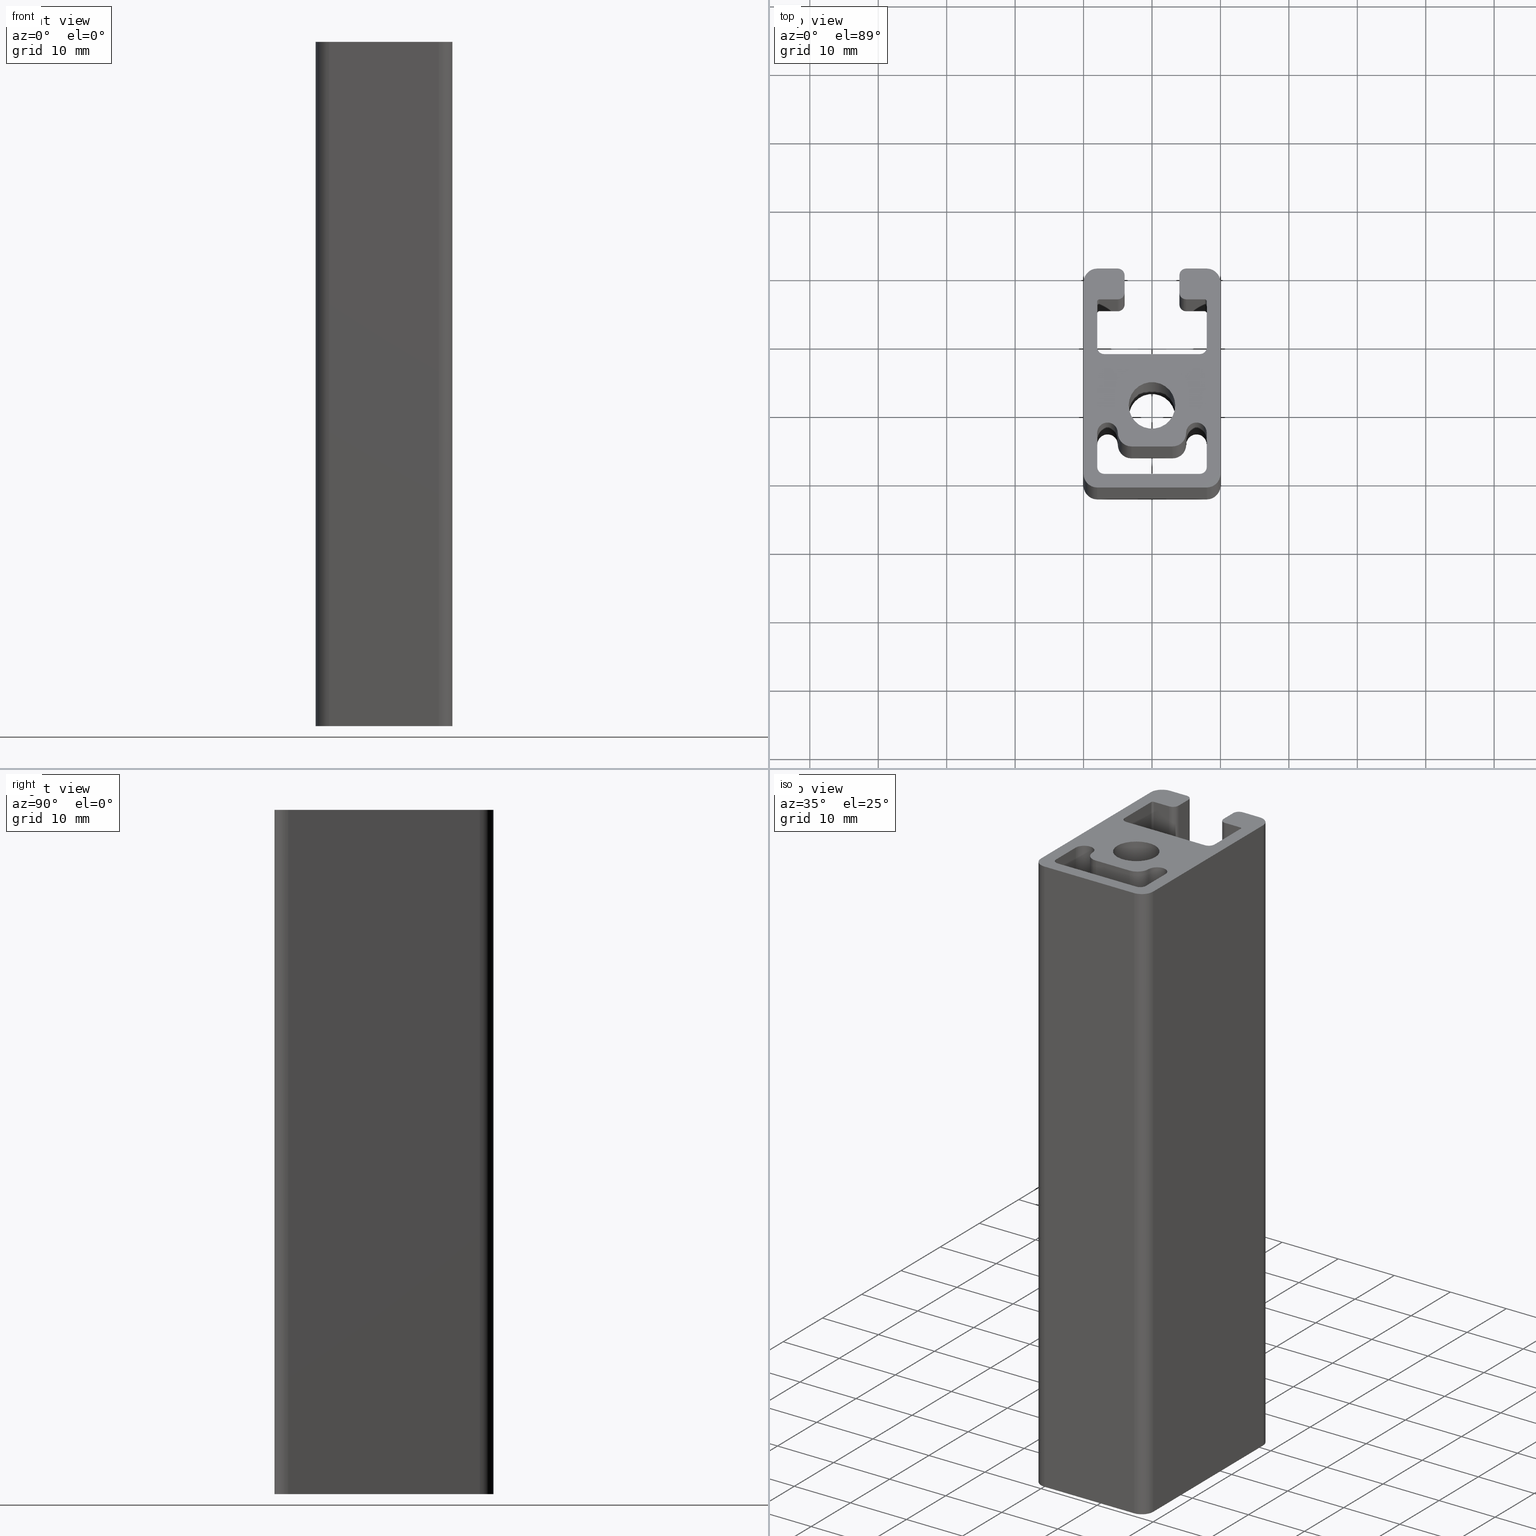
[diagram: canonical four-view strip — front | top / right | iso, engineering-drawing reading convention]
A machine part, canonical four-view strip (front | top / right | iso — engineering-drawing reading convention). The complete STEP part file that produces these views, byte-faithful:
ISO-10303-21;
HEADER;
/* Generated by software containing ST-Developer
 * from STEP Tools, Inc. (www.steptools.com) 
 */

FILE_DESCRIPTION(
/* description */ (''),
/* implementation_level */ '2;1');

FILE_NAME(
/* name */ 
'Q:\\Catalogo\\1_Profili Dierre\\Per Download Web\\Serie 40\\BPRDD0000
031.stp',
/* time_stamp */ '2017-07-12T11:02:10+02:00',
/* author */ ('fzagni'),
/* organization */ (''),
/* preprocessor_version */ 'ST-DEVELOPER v16.1',
/* originating_system */ 'Autodesk Inventor 2016',
/* authorisation */ '');

FILE_SCHEMA (('AUTOMOTIVE_DESIGN { 1 0 10303 214 3 1 1 }'));
ENDSEC;

DATA;
#10=MECHANICAL_DESIGN_GEOMETRIC_PRESENTATION_REPRESENTATION('',(#13),#1235);
#11=SHAPE_REPRESENTATION_RELATIONSHIP('SRR','None',#1244,#12);
#12=ADVANCED_BREP_SHAPE_REPRESENTATION('',(#14),#1234);
#13=STYLED_ITEM('',(#1253),#14);
#14=MANIFOLD_SOLID_BREP('Solido1',#725);
#15=LINE('',#1029,#81);
#16=LINE('',#1031,#82);
#17=LINE('',#1033,#83);
#18=LINE('',#1034,#84);
#19=LINE('',#1040,#85);
#20=LINE('',#1043,#86);
#21=LINE('',#1045,#87);
#22=LINE('',#1046,#88);
#23=LINE('',#1052,#89);
#24=LINE('',#1058,#90);
#25=LINE('',#1061,#91);
#26=LINE('',#1063,#92);
#27=LINE('',#1064,#93);
#28=LINE('',#1070,#94);
#29=LINE('',#1076,#95);
#30=LINE('',#1079,#96);
#31=LINE('',#1081,#97);
#32=LINE('',#1082,#98);
#33=LINE('',#1091,#99);
#34=LINE('',#1094,#100);
#35=LINE('',#1097,#101);
#36=LINE('',#1099,#102);
#37=LINE('',#1100,#103);
#38=LINE('',#1105,#104);
#39=LINE('',#1109,#105);
#40=LINE('',#1111,#106);
#41=LINE('',#1112,#107);
#42=LINE('',#1117,#108);
#43=LINE('',#1121,#109);
#44=LINE('',#1123,#110);
#45=LINE('',#1124,#111);
#46=LINE('',#1129,#112);
#47=LINE('',#1133,#113);
#48=LINE('',#1135,#114);
#49=LINE('',#1136,#115);
#50=LINE('',#1141,#116);
#51=LINE('',#1145,#117);
#52=LINE('',#1147,#118);
#53=LINE('',#1148,#119);
#54=LINE('',#1153,#120);
#55=LINE('',#1157,#121);
#56=LINE('',#1159,#122);
#57=LINE('',#1160,#123);
#58=LINE('',#1165,#124);
#59=LINE('',#1169,#125);
#60=LINE('',#1171,#126);
#61=LINE('',#1172,#127);
#62=LINE('',#1177,#128);
#63=LINE('',#1181,#129);
#64=LINE('',#1183,#130);
#65=LINE('',#1184,#131);
#66=LINE('',#1187,#132);
#67=LINE('',#1189,#133);
#68=LINE('',#1190,#134);
#69=LINE('',#1196,#135);
#70=LINE('',#1199,#136);
#71=LINE('',#1202,#137);
#72=LINE('',#1204,#138);
#73=LINE('',#1205,#139);
#74=LINE('',#1213,#140);
#75=LINE('',#1217,#141);
#76=LINE('',#1219,#142);
#77=LINE('',#1220,#143);
#78=LINE('',#1225,#144);
#79=LINE('',#1228,#145);
#80=LINE('',#1229,#146);
#81=VECTOR('',#812,14.0000011505603);
#82=VECTOR('',#813,100.);
#83=VECTOR('',#814,14.0000011505603);
#84=VECTOR('',#815,100.);
#85=VECTOR('',#822,100.);
#86=VECTOR('',#825,5.00000057528016);
#87=VECTOR('',#826,5.00000057528016);
#88=VECTOR('',#827,100.);
#89=VECTOR('',#834,100.);
#90=VECTOR('',#841,100.);
#91=VECTOR('',#844,5.99999999999999);
#92=VECTOR('',#845,5.99999999999999);
#93=VECTOR('',#846,100.);
#94=VECTOR('',#853,100.);
#95=VECTOR('',#860,100.);
#96=VECTOR('',#863,5.00000057528015);
#97=VECTOR('',#864,5.00000057528015);
#98=VECTOR('',#865,100.);
#99=VECTOR('',#876,100.);
#100=VECTOR('',#879,100.);
#101=VECTOR('',#882,2.50000399190596);
#102=VECTOR('',#883,100.);
#103=VECTOR('',#884,2.50000399190596);
#104=VECTOR('',#889,100.);
#105=VECTOR('',#894,2.70000144973507);
#106=VECTOR('',#895,100.);
#107=VECTOR('',#896,2.70000144973507);
#108=VECTOR('',#901,100.);
#109=VECTOR('',#906,6.70000144973492);
#110=VECTOR('',#907,100.);
#111=VECTOR('',#908,6.70000144973492);
#112=VECTOR('',#913,100.);
#113=VECTOR('',#918,14.0000039919057);
#114=VECTOR('',#919,100.);
#115=VECTOR('',#920,14.0000039919057);
#116=VECTOR('',#925,100.);
#117=VECTOR('',#930,6.70000144973492);
#118=VECTOR('',#931,100.);
#119=VECTOR('',#932,6.70000144973492);
#120=VECTOR('',#937,100.);
#121=VECTOR('',#942,2.70000144973507);
#122=VECTOR('',#943,100.);
#123=VECTOR('',#944,2.70000144973507);
#124=VECTOR('',#949,100.);
#125=VECTOR('',#954,2.50000399190597);
#126=VECTOR('',#955,100.);
#127=VECTOR('',#956,2.50000399190597);
#128=VECTOR('',#961,100.);
#129=VECTOR('',#966,3.00000199595299);
#130=VECTOR('',#967,100.);
#131=VECTOR('',#968,3.00000199595299);
#132=VECTOR('',#971,3.00000199595296);
#133=VECTOR('',#972,100.);
#134=VECTOR('',#973,3.00000199595296);
#135=VECTOR('',#978,100.);
#136=VECTOR('',#981,100.);
#137=VECTOR('',#984,28.);
#138=VECTOR('',#985,100.);
#139=VECTOR('',#986,28.);
#140=VECTOR('',#997,100.);
#141=VECTOR('',#1002,28.);
#142=VECTOR('',#1003,100.);
#143=VECTOR('',#1004,28.);
#144=VECTOR('',#1009,100.);
#145=VECTOR('',#1014,16.);
#146=VECTOR('',#1015,16.);
#147=PLANE('',#730);
#148=PLANE('',#734);
#149=PLANE('',#741);
#150=PLANE('',#748);
#151=PLANE('',#755);
#152=PLANE('',#759);
#153=PLANE('',#763);
#154=PLANE('',#767);
#155=PLANE('',#771);
#156=PLANE('',#775);
#157=PLANE('',#779);
#158=PLANE('',#783);
#159=PLANE('',#784);
#160=PLANE('',#788);
#161=PLANE('',#795);
#162=PLANE('',#799);
#163=PLANE('',#800);
#164=PLANE('',#801);
#165=FACE_BOUND('',#208,.T.);
#166=FACE_BOUND('',#244,.T.);
#167=FACE_BOUND('',#245,.T.);
#168=FACE_BOUND('',#247,.T.);
#169=FACE_BOUND('',#248,.T.);
#170=FACE_OUTER_BOUND('',#207,.T.);
#171=FACE_OUTER_BOUND('',#209,.T.);
#172=FACE_OUTER_BOUND('',#210,.T.);
#173=FACE_OUTER_BOUND('',#211,.T.);
#174=FACE_OUTER_BOUND('',#212,.T.);
#175=FACE_OUTER_BOUND('',#213,.T.);
#176=FACE_OUTER_BOUND('',#214,.T.);
#177=FACE_OUTER_BOUND('',#215,.T.);
#178=FACE_OUTER_BOUND('',#216,.T.);
#179=FACE_OUTER_BOUND('',#217,.T.);
#180=FACE_OUTER_BOUND('',#218,.T.);
#181=FACE_OUTER_BOUND('',#219,.T.);
#182=FACE_OUTER_BOUND('',#220,.T.);
#183=FACE_OUTER_BOUND('',#221,.T.);
#184=FACE_OUTER_BOUND('',#222,.T.);
#185=FACE_OUTER_BOUND('',#223,.T.);
#186=FACE_OUTER_BOUND('',#224,.T.);
#187=FACE_OUTER_BOUND('',#225,.T.);
#188=FACE_OUTER_BOUND('',#226,.T.);
#189=FACE_OUTER_BOUND('',#227,.T.);
#190=FACE_OUTER_BOUND('',#228,.T.);
#191=FACE_OUTER_BOUND('',#229,.T.);
#192=FACE_OUTER_BOUND('',#230,.T.);
#193=FACE_OUTER_BOUND('',#231,.T.);
#194=FACE_OUTER_BOUND('',#232,.T.);
#195=FACE_OUTER_BOUND('',#233,.T.);
#196=FACE_OUTER_BOUND('',#234,.T.);
#197=FACE_OUTER_BOUND('',#235,.T.);
#198=FACE_OUTER_BOUND('',#236,.T.);
#199=FACE_OUTER_BOUND('',#237,.T.);
#200=FACE_OUTER_BOUND('',#238,.T.);
#201=FACE_OUTER_BOUND('',#239,.T.);
#202=FACE_OUTER_BOUND('',#240,.T.);
#203=FACE_OUTER_BOUND('',#241,.T.);
#204=FACE_OUTER_BOUND('',#242,.T.);
#205=FACE_OUTER_BOUND('',#243,.T.);
#206=FACE_OUTER_BOUND('',#246,.T.);
#207=EDGE_LOOP('',(#461));
#208=EDGE_LOOP('',(#462));
#209=EDGE_LOOP('',(#463,#464,#465,#466));
#210=EDGE_LOOP('',(#467,#468,#469,#470));
#211=EDGE_LOOP('',(#471,#472,#473,#474));
#212=EDGE_LOOP('',(#475,#476,#477,#478));
#213=EDGE_LOOP('',(#479,#480,#481,#482));
#214=EDGE_LOOP('',(#483,#484,#485,#486));
#215=EDGE_LOOP('',(#487,#488,#489,#490));
#216=EDGE_LOOP('',(#491,#492,#493,#494));
#217=EDGE_LOOP('',(#495,#496,#497,#498));
#218=EDGE_LOOP('',(#499,#500,#501,#502));
#219=EDGE_LOOP('',(#503,#504,#505,#506));
#220=EDGE_LOOP('',(#507,#508,#509,#510));
#221=EDGE_LOOP('',(#511,#512,#513,#514));
#222=EDGE_LOOP('',(#515,#516,#517,#518));
#223=EDGE_LOOP('',(#519,#520,#521,#522));
#224=EDGE_LOOP('',(#523,#524,#525,#526));
#225=EDGE_LOOP('',(#527,#528,#529,#530));
#226=EDGE_LOOP('',(#531,#532,#533,#534));
#227=EDGE_LOOP('',(#535,#536,#537,#538));
#228=EDGE_LOOP('',(#539,#540,#541,#542));
#229=EDGE_LOOP('',(#543,#544,#545,#546));
#230=EDGE_LOOP('',(#547,#548,#549,#550));
#231=EDGE_LOOP('',(#551,#552,#553,#554));
#232=EDGE_LOOP('',(#555,#556,#557,#558));
#233=EDGE_LOOP('',(#559,#560,#561,#562));
#234=EDGE_LOOP('',(#563,#564,#565,#566));
#235=EDGE_LOOP('',(#567,#568,#569,#570));
#236=EDGE_LOOP('',(#571,#572,#573,#574));
#237=EDGE_LOOP('',(#575,#576,#577,#578));
#238=EDGE_LOOP('',(#579,#580,#581,#582));
#239=EDGE_LOOP('',(#583,#584,#585,#586));
#240=EDGE_LOOP('',(#587,#588,#589,#590));
#241=EDGE_LOOP('',(#591,#592,#593,#594));
#242=EDGE_LOOP('',(#595,#596,#597,#598));
#243=EDGE_LOOP('',(#599,#600,#601,#602,#603,#604,#605,#606,#607,#608,#609,
#610,#611,#612,#613,#614,#615,#616,#617,#618,#619,#620,#621,#622));
#244=EDGE_LOOP('',(#623));
#245=EDGE_LOOP('',(#624,#625,#626,#627,#628,#629,#630,#631,#632,#633));
#246=EDGE_LOOP('',(#634,#635,#636,#637,#638,#639,#640,#641,#642,#643,#644,
#645,#646,#647,#648,#649,#650,#651,#652,#653,#654,#655,#656,#657));
#247=EDGE_LOOP('',(#658));
#248=EDGE_LOOP('',(#659,#660,#661,#662,#663,#664,#665,#666,#667,#668));
#249=CIRCLE('',#728,3.4);
#250=CIRCLE('',#729,3.4);
#251=CIRCLE('',#732,0.999999424719846);
#252=CIRCLE('',#733,0.999999424719846);
#253=CIRCLE('',#736,1.5);
#254=CIRCLE('',#737,1.5);
#255=CIRCLE('',#739,2.);
#256=CIRCLE('',#740,2.);
#257=CIRCLE('',#743,2.);
#258=CIRCLE('',#744,2.);
#259=CIRCLE('',#746,1.5);
#260=CIRCLE('',#747,1.5);
#261=CIRCLE('',#750,0.999999424719839);
#262=CIRCLE('',#751,0.999999424719839);
#263=CIRCLE('',#753,0.999998004047022);
#264=CIRCLE('',#754,0.999998004047022);
#265=CIRCLE('',#757,0.999998004047022);
#266=CIRCLE('',#758,0.999998004047022);
#267=CIRCLE('',#761,0.300000546217913);
#268=CIRCLE('',#762,0.300000546217913);
#269=CIRCLE('',#765,0.999998004047152);
#270=CIRCLE('',#766,0.999998004047152);
#271=CIRCLE('',#769,0.99999800404715);
#272=CIRCLE('',#770,0.99999800404715);
#273=CIRCLE('',#773,0.300000546217916);
#274=CIRCLE('',#774,0.300000546217916);
#275=CIRCLE('',#777,0.999998004047022);
#276=CIRCLE('',#778,0.999998004047022);
#277=CIRCLE('',#781,0.999998004047022);
#278=CIRCLE('',#782,0.999998004047022);
#279=CIRCLE('',#786,2.);
#280=CIRCLE('',#787,2.);
#281=CIRCLE('',#790,1.99999999999999);
#282=CIRCLE('',#791,1.99999999999999);
#283=CIRCLE('',#793,2.);
#284=CIRCLE('',#794,2.);
#285=CIRCLE('',#797,2.);
#286=CIRCLE('',#798,2.);
#287=VERTEX_POINT('',#1022);
#288=VERTEX_POINT('',#1024);
#289=VERTEX_POINT('',#1027);
#290=VERTEX_POINT('',#1028);
#291=VERTEX_POINT('',#1030);
#292=VERTEX_POINT('',#1032);
#293=VERTEX_POINT('',#1036);
#294=VERTEX_POINT('',#1038);
#295=VERTEX_POINT('',#1042);
#296=VERTEX_POINT('',#1044);
#297=VERTEX_POINT('',#1048);
#298=VERTEX_POINT('',#1050);
#299=VERTEX_POINT('',#1054);
#300=VERTEX_POINT('',#1056);
#301=VERTEX_POINT('',#1060);
#302=VERTEX_POINT('',#1062);
#303=VERTEX_POINT('',#1066);
#304=VERTEX_POINT('',#1068);
#305=VERTEX_POINT('',#1072);
#306=VERTEX_POINT('',#1074);
#307=VERTEX_POINT('',#1078);
#308=VERTEX_POINT('',#1080);
#309=VERTEX_POINT('',#1087);
#310=VERTEX_POINT('',#1088);
#311=VERTEX_POINT('',#1090);
#312=VERTEX_POINT('',#1092);
#313=VERTEX_POINT('',#1096);
#314=VERTEX_POINT('',#1098);
#315=VERTEX_POINT('',#1102);
#316=VERTEX_POINT('',#1104);
#317=VERTEX_POINT('',#1108);
#318=VERTEX_POINT('',#1110);
#319=VERTEX_POINT('',#1114);
#320=VERTEX_POINT('',#1116);
#321=VERTEX_POINT('',#1120);
#322=VERTEX_POINT('',#1122);
#323=VERTEX_POINT('',#1126);
#324=VERTEX_POINT('',#1128);
#325=VERTEX_POINT('',#1132);
#326=VERTEX_POINT('',#1134);
#327=VERTEX_POINT('',#1138);
#328=VERTEX_POINT('',#1140);
#329=VERTEX_POINT('',#1144);
#330=VERTEX_POINT('',#1146);
#331=VERTEX_POINT('',#1150);
#332=VERTEX_POINT('',#1152);
#333=VERTEX_POINT('',#1156);
#334=VERTEX_POINT('',#1158);
#335=VERTEX_POINT('',#1162);
#336=VERTEX_POINT('',#1164);
#337=VERTEX_POINT('',#1168);
#338=VERTEX_POINT('',#1170);
#339=VERTEX_POINT('',#1174);
#340=VERTEX_POINT('',#1176);
#341=VERTEX_POINT('',#1180);
#342=VERTEX_POINT('',#1182);
#343=VERTEX_POINT('',#1186);
#344=VERTEX_POINT('',#1188);
#345=VERTEX_POINT('',#1192);
#346=VERTEX_POINT('',#1193);
#347=VERTEX_POINT('',#1195);
#348=VERTEX_POINT('',#1197);
#349=VERTEX_POINT('',#1201);
#350=VERTEX_POINT('',#1203);
#351=VERTEX_POINT('',#1210);
#352=VERTEX_POINT('',#1212);
#353=VERTEX_POINT('',#1216);
#354=VERTEX_POINT('',#1218);
#355=VERTEX_POINT('',#1222);
#356=VERTEX_POINT('',#1224);
#357=EDGE_CURVE('',#287,#287,#249,.T.);
#358=EDGE_CURVE('',#288,#288,#250,.T.);
#359=EDGE_CURVE('',#289,#290,#15,.T.);
#360=EDGE_CURVE('',#291,#289,#16,.T.);
#361=EDGE_CURVE('',#292,#291,#17,.T.);
#362=EDGE_CURVE('',#292,#290,#18,.T.);
#363=EDGE_CURVE('',#290,#293,#251,.T.);
#364=EDGE_CURVE('',#294,#292,#252,.T.);
#365=EDGE_CURVE('',#294,#293,#19,.T.);
#366=EDGE_CURVE('',#293,#295,#20,.T.);
#367=EDGE_CURVE('',#296,#294,#21,.T.);
#368=EDGE_CURVE('',#296,#295,#22,.T.);
#369=EDGE_CURVE('',#295,#297,#253,.T.);
#370=EDGE_CURVE('',#298,#296,#254,.T.);
#371=EDGE_CURVE('',#298,#297,#23,.T.);
#372=EDGE_CURVE('',#297,#299,#255,.T.);
#373=EDGE_CURVE('',#300,#298,#256,.T.);
#374=EDGE_CURVE('',#300,#299,#24,.T.);
#375=EDGE_CURVE('',#299,#301,#25,.T.);
#376=EDGE_CURVE('',#302,#300,#26,.T.);
#377=EDGE_CURVE('',#302,#301,#27,.T.);
#378=EDGE_CURVE('',#301,#303,#257,.T.);
#379=EDGE_CURVE('',#304,#302,#258,.T.);
#380=EDGE_CURVE('',#304,#303,#28,.T.);
#381=EDGE_CURVE('',#303,#305,#259,.T.);
#382=EDGE_CURVE('',#306,#304,#260,.T.);
#383=EDGE_CURVE('',#306,#305,#29,.T.);
#384=EDGE_CURVE('',#305,#307,#30,.T.);
#385=EDGE_CURVE('',#308,#306,#31,.T.);
#386=EDGE_CURVE('',#308,#307,#32,.T.);
#387=EDGE_CURVE('',#307,#289,#261,.T.);
#388=EDGE_CURVE('',#291,#308,#262,.T.);
#389=EDGE_CURVE('',#309,#310,#263,.T.);
#390=EDGE_CURVE('',#311,#309,#33,.T.);
#391=EDGE_CURVE('',#312,#311,#264,.T.);
#392=EDGE_CURVE('',#310,#312,#34,.T.);
#393=EDGE_CURVE('',#313,#309,#35,.T.);
#394=EDGE_CURVE('',#314,#313,#36,.T.);
#395=EDGE_CURVE('',#311,#314,#37,.T.);
#396=EDGE_CURVE('',#315,#313,#265,.T.);
#397=EDGE_CURVE('',#316,#315,#38,.T.);
#398=EDGE_CURVE('',#314,#316,#266,.T.);
#399=EDGE_CURVE('',#317,#315,#39,.T.);
#400=EDGE_CURVE('',#318,#317,#40,.T.);
#401=EDGE_CURVE('',#316,#318,#41,.T.);
#402=EDGE_CURVE('',#319,#317,#267,.T.);
#403=EDGE_CURVE('',#320,#319,#42,.T.);
#404=EDGE_CURVE('',#318,#320,#268,.T.);
#405=EDGE_CURVE('',#321,#319,#43,.T.);
#406=EDGE_CURVE('',#322,#321,#44,.T.);
#407=EDGE_CURVE('',#320,#322,#45,.T.);
#408=EDGE_CURVE('',#323,#321,#269,.T.);
#409=EDGE_CURVE('',#324,#323,#46,.T.);
#410=EDGE_CURVE('',#322,#324,#270,.T.);
#411=EDGE_CURVE('',#325,#323,#47,.T.);
#412=EDGE_CURVE('',#326,#325,#48,.T.);
#413=EDGE_CURVE('',#324,#326,#49,.T.);
#414=EDGE_CURVE('',#327,#325,#271,.T.);
#415=EDGE_CURVE('',#328,#327,#50,.T.);
#416=EDGE_CURVE('',#326,#328,#272,.T.);
#417=EDGE_CURVE('',#329,#327,#51,.T.);
#418=EDGE_CURVE('',#330,#329,#52,.T.);
#419=EDGE_CURVE('',#328,#330,#53,.T.);
#420=EDGE_CURVE('',#331,#329,#273,.T.);
#421=EDGE_CURVE('',#332,#331,#54,.T.);
#422=EDGE_CURVE('',#330,#332,#274,.T.);
#423=EDGE_CURVE('',#333,#331,#55,.T.);
#424=EDGE_CURVE('',#334,#333,#56,.T.);
#425=EDGE_CURVE('',#332,#334,#57,.T.);
#426=EDGE_CURVE('',#335,#333,#275,.T.);
#427=EDGE_CURVE('',#336,#335,#58,.T.);
#428=EDGE_CURVE('',#334,#336,#276,.T.);
#429=EDGE_CURVE('',#337,#335,#59,.T.);
#430=EDGE_CURVE('',#338,#337,#60,.T.);
#431=EDGE_CURVE('',#336,#338,#61,.T.);
#432=EDGE_CURVE('',#339,#337,#277,.T.);
#433=EDGE_CURVE('',#339,#340,#62,.T.);
#434=EDGE_CURVE('',#338,#340,#278,.T.);
#435=EDGE_CURVE('',#341,#312,#63,.T.);
#436=EDGE_CURVE('',#341,#342,#64,.T.);
#437=EDGE_CURVE('',#342,#310,#65,.T.);
#438=EDGE_CURVE('',#339,#343,#66,.T.);
#439=EDGE_CURVE('',#344,#343,#67,.T.);
#440=EDGE_CURVE('',#340,#344,#68,.T.);
#441=EDGE_CURVE('',#345,#346,#279,.T.);
#442=EDGE_CURVE('',#347,#346,#69,.T.);
#443=EDGE_CURVE('',#348,#347,#280,.T.);
#444=EDGE_CURVE('',#348,#345,#70,.T.);
#445=EDGE_CURVE('',#346,#349,#71,.T.);
#446=EDGE_CURVE('',#350,#349,#72,.T.);
#447=EDGE_CURVE('',#347,#350,#73,.T.);
#448=EDGE_CURVE('',#349,#342,#281,.T.);
#449=EDGE_CURVE('',#350,#341,#282,.T.);
#450=EDGE_CURVE('',#343,#351,#283,.T.);
#451=EDGE_CURVE('',#352,#351,#74,.T.);
#452=EDGE_CURVE('',#344,#352,#284,.T.);
#453=EDGE_CURVE('',#351,#353,#75,.T.);
#454=EDGE_CURVE('',#354,#353,#76,.T.);
#455=EDGE_CURVE('',#352,#354,#77,.T.);
#456=EDGE_CURVE('',#353,#355,#285,.T.);
#457=EDGE_CURVE('',#356,#355,#78,.T.);
#458=EDGE_CURVE('',#354,#356,#286,.T.);
#459=EDGE_CURVE('',#355,#345,#79,.T.);
#460=EDGE_CURVE('',#356,#348,#80,.T.);
#461=ORIENTED_EDGE('',*,*,#357,.F.);
#462=ORIENTED_EDGE('',*,*,#358,.F.);
#463=ORIENTED_EDGE('',*,*,#359,.F.);
#464=ORIENTED_EDGE('',*,*,#360,.F.);
#465=ORIENTED_EDGE('',*,*,#361,.F.);
#466=ORIENTED_EDGE('',*,*,#362,.T.);
#467=ORIENTED_EDGE('',*,*,#363,.F.);
#468=ORIENTED_EDGE('',*,*,#362,.F.);
#469=ORIENTED_EDGE('',*,*,#364,.F.);
#470=ORIENTED_EDGE('',*,*,#365,.T.);
#471=ORIENTED_EDGE('',*,*,#366,.F.);
#472=ORIENTED_EDGE('',*,*,#365,.F.);
#473=ORIENTED_EDGE('',*,*,#367,.F.);
#474=ORIENTED_EDGE('',*,*,#368,.T.);
#475=ORIENTED_EDGE('',*,*,#369,.F.);
#476=ORIENTED_EDGE('',*,*,#368,.F.);
#477=ORIENTED_EDGE('',*,*,#370,.F.);
#478=ORIENTED_EDGE('',*,*,#371,.T.);
#479=ORIENTED_EDGE('',*,*,#372,.F.);
#480=ORIENTED_EDGE('',*,*,#371,.F.);
#481=ORIENTED_EDGE('',*,*,#373,.F.);
#482=ORIENTED_EDGE('',*,*,#374,.T.);
#483=ORIENTED_EDGE('',*,*,#375,.F.);
#484=ORIENTED_EDGE('',*,*,#374,.F.);
#485=ORIENTED_EDGE('',*,*,#376,.F.);
#486=ORIENTED_EDGE('',*,*,#377,.T.);
#487=ORIENTED_EDGE('',*,*,#378,.F.);
#488=ORIENTED_EDGE('',*,*,#377,.F.);
#489=ORIENTED_EDGE('',*,*,#379,.F.);
#490=ORIENTED_EDGE('',*,*,#380,.T.);
#491=ORIENTED_EDGE('',*,*,#381,.F.);
#492=ORIENTED_EDGE('',*,*,#380,.F.);
#493=ORIENTED_EDGE('',*,*,#382,.F.);
#494=ORIENTED_EDGE('',*,*,#383,.T.);
#495=ORIENTED_EDGE('',*,*,#384,.F.);
#496=ORIENTED_EDGE('',*,*,#383,.F.);
#497=ORIENTED_EDGE('',*,*,#385,.F.);
#498=ORIENTED_EDGE('',*,*,#386,.T.);
#499=ORIENTED_EDGE('',*,*,#387,.F.);
#500=ORIENTED_EDGE('',*,*,#386,.F.);
#501=ORIENTED_EDGE('',*,*,#388,.F.);
#502=ORIENTED_EDGE('',*,*,#360,.T.);
#503=ORIENTED_EDGE('',*,*,#389,.F.);
#504=ORIENTED_EDGE('',*,*,#390,.F.);
#505=ORIENTED_EDGE('',*,*,#391,.F.);
#506=ORIENTED_EDGE('',*,*,#392,.F.);
#507=ORIENTED_EDGE('',*,*,#393,.F.);
#508=ORIENTED_EDGE('',*,*,#394,.F.);
#509=ORIENTED_EDGE('',*,*,#395,.F.);
#510=ORIENTED_EDGE('',*,*,#390,.T.);
#511=ORIENTED_EDGE('',*,*,#396,.F.);
#512=ORIENTED_EDGE('',*,*,#397,.F.);
#513=ORIENTED_EDGE('',*,*,#398,.F.);
#514=ORIENTED_EDGE('',*,*,#394,.T.);
#515=ORIENTED_EDGE('',*,*,#399,.F.);
#516=ORIENTED_EDGE('',*,*,#400,.F.);
#517=ORIENTED_EDGE('',*,*,#401,.F.);
#518=ORIENTED_EDGE('',*,*,#397,.T.);
#519=ORIENTED_EDGE('',*,*,#402,.F.);
#520=ORIENTED_EDGE('',*,*,#403,.F.);
#521=ORIENTED_EDGE('',*,*,#404,.F.);
#522=ORIENTED_EDGE('',*,*,#400,.T.);
#523=ORIENTED_EDGE('',*,*,#405,.F.);
#524=ORIENTED_EDGE('',*,*,#406,.F.);
#525=ORIENTED_EDGE('',*,*,#407,.F.);
#526=ORIENTED_EDGE('',*,*,#403,.T.);
#527=ORIENTED_EDGE('',*,*,#408,.F.);
#528=ORIENTED_EDGE('',*,*,#409,.F.);
#529=ORIENTED_EDGE('',*,*,#410,.F.);
#530=ORIENTED_EDGE('',*,*,#406,.T.);
#531=ORIENTED_EDGE('',*,*,#411,.F.);
#532=ORIENTED_EDGE('',*,*,#412,.F.);
#533=ORIENTED_EDGE('',*,*,#413,.F.);
#534=ORIENTED_EDGE('',*,*,#409,.T.);
#535=ORIENTED_EDGE('',*,*,#414,.F.);
#536=ORIENTED_EDGE('',*,*,#415,.F.);
#537=ORIENTED_EDGE('',*,*,#416,.F.);
#538=ORIENTED_EDGE('',*,*,#412,.T.);
#539=ORIENTED_EDGE('',*,*,#417,.F.);
#540=ORIENTED_EDGE('',*,*,#418,.F.);
#541=ORIENTED_EDGE('',*,*,#419,.F.);
#542=ORIENTED_EDGE('',*,*,#415,.T.);
#543=ORIENTED_EDGE('',*,*,#420,.F.);
#544=ORIENTED_EDGE('',*,*,#421,.F.);
#545=ORIENTED_EDGE('',*,*,#422,.F.);
#546=ORIENTED_EDGE('',*,*,#418,.T.);
#547=ORIENTED_EDGE('',*,*,#423,.F.);
#548=ORIENTED_EDGE('',*,*,#424,.F.);
#549=ORIENTED_EDGE('',*,*,#425,.F.);
#550=ORIENTED_EDGE('',*,*,#421,.T.);
#551=ORIENTED_EDGE('',*,*,#426,.F.);
#552=ORIENTED_EDGE('',*,*,#427,.F.);
#553=ORIENTED_EDGE('',*,*,#428,.F.);
#554=ORIENTED_EDGE('',*,*,#424,.T.);
#555=ORIENTED_EDGE('',*,*,#429,.F.);
#556=ORIENTED_EDGE('',*,*,#430,.F.);
#557=ORIENTED_EDGE('',*,*,#431,.F.);
#558=ORIENTED_EDGE('',*,*,#427,.T.);
#559=ORIENTED_EDGE('',*,*,#432,.F.);
#560=ORIENTED_EDGE('',*,*,#433,.T.);
#561=ORIENTED_EDGE('',*,*,#434,.F.);
#562=ORIENTED_EDGE('',*,*,#430,.T.);
#563=ORIENTED_EDGE('',*,*,#392,.T.);
#564=ORIENTED_EDGE('',*,*,#435,.F.);
#565=ORIENTED_EDGE('',*,*,#436,.T.);
#566=ORIENTED_EDGE('',*,*,#437,.T.);
#567=ORIENTED_EDGE('',*,*,#433,.F.);
#568=ORIENTED_EDGE('',*,*,#438,.T.);
#569=ORIENTED_EDGE('',*,*,#439,.F.);
#570=ORIENTED_EDGE('',*,*,#440,.F.);
#571=ORIENTED_EDGE('',*,*,#441,.T.);
#572=ORIENTED_EDGE('',*,*,#442,.F.);
#573=ORIENTED_EDGE('',*,*,#443,.F.);
#574=ORIENTED_EDGE('',*,*,#444,.T.);
#575=ORIENTED_EDGE('',*,*,#445,.T.);
#576=ORIENTED_EDGE('',*,*,#446,.F.);
#577=ORIENTED_EDGE('',*,*,#447,.F.);
#578=ORIENTED_EDGE('',*,*,#442,.T.);
#579=ORIENTED_EDGE('',*,*,#448,.T.);
#580=ORIENTED_EDGE('',*,*,#436,.F.);
#581=ORIENTED_EDGE('',*,*,#449,.F.);
#582=ORIENTED_EDGE('',*,*,#446,.T.);
#583=ORIENTED_EDGE('',*,*,#450,.T.);
#584=ORIENTED_EDGE('',*,*,#451,.F.);
#585=ORIENTED_EDGE('',*,*,#452,.F.);
#586=ORIENTED_EDGE('',*,*,#439,.T.);
#587=ORIENTED_EDGE('',*,*,#453,.T.);
#588=ORIENTED_EDGE('',*,*,#454,.F.);
#589=ORIENTED_EDGE('',*,*,#455,.F.);
#590=ORIENTED_EDGE('',*,*,#451,.T.);
#591=ORIENTED_EDGE('',*,*,#456,.T.);
#592=ORIENTED_EDGE('',*,*,#457,.F.);
#593=ORIENTED_EDGE('',*,*,#458,.F.);
#594=ORIENTED_EDGE('',*,*,#454,.T.);
#595=ORIENTED_EDGE('',*,*,#459,.T.);
#596=ORIENTED_EDGE('',*,*,#444,.F.);
#597=ORIENTED_EDGE('',*,*,#460,.F.);
#598=ORIENTED_EDGE('',*,*,#457,.T.);
#599=ORIENTED_EDGE('',*,*,#434,.T.);
#600=ORIENTED_EDGE('',*,*,#440,.T.);
#601=ORIENTED_EDGE('',*,*,#452,.T.);
#602=ORIENTED_EDGE('',*,*,#455,.T.);
#603=ORIENTED_EDGE('',*,*,#458,.T.);
#604=ORIENTED_EDGE('',*,*,#460,.T.);
#605=ORIENTED_EDGE('',*,*,#443,.T.);
#606=ORIENTED_EDGE('',*,*,#447,.T.);
#607=ORIENTED_EDGE('',*,*,#449,.T.);
#608=ORIENTED_EDGE('',*,*,#435,.T.);
#609=ORIENTED_EDGE('',*,*,#391,.T.);
#610=ORIENTED_EDGE('',*,*,#395,.T.);
#611=ORIENTED_EDGE('',*,*,#398,.T.);
#612=ORIENTED_EDGE('',*,*,#401,.T.);
#613=ORIENTED_EDGE('',*,*,#404,.T.);
#614=ORIENTED_EDGE('',*,*,#407,.T.);
#615=ORIENTED_EDGE('',*,*,#410,.T.);
#616=ORIENTED_EDGE('',*,*,#413,.T.);
#617=ORIENTED_EDGE('',*,*,#416,.T.);
#618=ORIENTED_EDGE('',*,*,#419,.T.);
#619=ORIENTED_EDGE('',*,*,#422,.T.);
#620=ORIENTED_EDGE('',*,*,#425,.T.);
#621=ORIENTED_EDGE('',*,*,#428,.T.);
#622=ORIENTED_EDGE('',*,*,#431,.T.);
#623=ORIENTED_EDGE('',*,*,#358,.T.);
#624=ORIENTED_EDGE('',*,*,#361,.T.);
#625=ORIENTED_EDGE('',*,*,#388,.T.);
#626=ORIENTED_EDGE('',*,*,#385,.T.);
#627=ORIENTED_EDGE('',*,*,#382,.T.);
#628=ORIENTED_EDGE('',*,*,#379,.T.);
#629=ORIENTED_EDGE('',*,*,#376,.T.);
#630=ORIENTED_EDGE('',*,*,#373,.T.);
#631=ORIENTED_EDGE('',*,*,#370,.T.);
#632=ORIENTED_EDGE('',*,*,#367,.T.);
#633=ORIENTED_EDGE('',*,*,#364,.T.);
#634=ORIENTED_EDGE('',*,*,#389,.T.);
#635=ORIENTED_EDGE('',*,*,#437,.F.);
#636=ORIENTED_EDGE('',*,*,#448,.F.);
#637=ORIENTED_EDGE('',*,*,#445,.F.);
#638=ORIENTED_EDGE('',*,*,#441,.F.);
#639=ORIENTED_EDGE('',*,*,#459,.F.);
#640=ORIENTED_EDGE('',*,*,#456,.F.);
#641=ORIENTED_EDGE('',*,*,#453,.F.);
#642=ORIENTED_EDGE('',*,*,#450,.F.);
#643=ORIENTED_EDGE('',*,*,#438,.F.);
#644=ORIENTED_EDGE('',*,*,#432,.T.);
#645=ORIENTED_EDGE('',*,*,#429,.T.);
#646=ORIENTED_EDGE('',*,*,#426,.T.);
#647=ORIENTED_EDGE('',*,*,#423,.T.);
#648=ORIENTED_EDGE('',*,*,#420,.T.);
#649=ORIENTED_EDGE('',*,*,#417,.T.);
#650=ORIENTED_EDGE('',*,*,#414,.T.);
#651=ORIENTED_EDGE('',*,*,#411,.T.);
#652=ORIENTED_EDGE('',*,*,#408,.T.);
#653=ORIENTED_EDGE('',*,*,#405,.T.);
#654=ORIENTED_EDGE('',*,*,#402,.T.);
#655=ORIENTED_EDGE('',*,*,#399,.T.);
#656=ORIENTED_EDGE('',*,*,#396,.T.);
#657=ORIENTED_EDGE('',*,*,#393,.T.);
#658=ORIENTED_EDGE('',*,*,#357,.T.);
#659=ORIENTED_EDGE('',*,*,#359,.T.);
#660=ORIENTED_EDGE('',*,*,#363,.T.);
#661=ORIENTED_EDGE('',*,*,#366,.T.);
#662=ORIENTED_EDGE('',*,*,#369,.T.);
#663=ORIENTED_EDGE('',*,*,#372,.T.);
#664=ORIENTED_EDGE('',*,*,#375,.T.);
#665=ORIENTED_EDGE('',*,*,#378,.T.);
#666=ORIENTED_EDGE('',*,*,#381,.T.);
#667=ORIENTED_EDGE('',*,*,#384,.T.);
#668=ORIENTED_EDGE('',*,*,#387,.T.);
#669=CYLINDRICAL_SURFACE('',#727,3.4);
#670=CYLINDRICAL_SURFACE('',#731,0.999999424719846);
#671=CYLINDRICAL_SURFACE('',#735,1.5);
#672=CYLINDRICAL_SURFACE('',#738,2.);
#673=CYLINDRICAL_SURFACE('',#742,2.);
#674=CYLINDRICAL_SURFACE('',#745,1.5);
#675=CYLINDRICAL_SURFACE('',#749,0.999999424719839);
#676=CYLINDRICAL_SURFACE('',#752,0.999998004047022);
#677=CYLINDRICAL_SURFACE('',#756,0.999998004047022);
#678=CYLINDRICAL_SURFACE('',#760,0.300000546217913);
#679=CYLINDRICAL_SURFACE('',#764,0.999998004047152);
#680=CYLINDRICAL_SURFACE('',#768,0.99999800404715);
#681=CYLINDRICAL_SURFACE('',#772,0.300000546217916);
#682=CYLINDRICAL_SURFACE('',#776,0.999998004047022);
#683=CYLINDRICAL_SURFACE('',#780,0.999998004047022);
#684=CYLINDRICAL_SURFACE('',#785,2.);
#685=CYLINDRICAL_SURFACE('',#789,1.99999999999999);
#686=CYLINDRICAL_SURFACE('',#792,2.);
#687=CYLINDRICAL_SURFACE('',#796,2.);
#688=ADVANCED_FACE('',(#170,#165),#669,.F.);
#689=ADVANCED_FACE('',(#171),#147,.F.);
#690=ADVANCED_FACE('',(#172),#670,.F.);
#691=ADVANCED_FACE('',(#173),#148,.F.);
#692=ADVANCED_FACE('',(#174),#671,.F.);
#693=ADVANCED_FACE('',(#175),#672,.T.);
#694=ADVANCED_FACE('',(#176),#149,.F.);
#695=ADVANCED_FACE('',(#177),#673,.T.);
#696=ADVANCED_FACE('',(#178),#674,.F.);
#697=ADVANCED_FACE('',(#179),#150,.F.);
#698=ADVANCED_FACE('',(#180),#675,.F.);
#699=ADVANCED_FACE('',(#181),#676,.T.);
#700=ADVANCED_FACE('',(#182),#151,.F.);
#701=ADVANCED_FACE('',(#183),#677,.T.);
#702=ADVANCED_FACE('',(#184),#152,.F.);
#703=ADVANCED_FACE('',(#185),#678,.F.);
#704=ADVANCED_FACE('',(#186),#153,.F.);
#705=ADVANCED_FACE('',(#187),#679,.F.);
#706=ADVANCED_FACE('',(#188),#154,.F.);
#707=ADVANCED_FACE('',(#189),#680,.F.);
#708=ADVANCED_FACE('',(#190),#155,.F.);
#709=ADVANCED_FACE('',(#191),#681,.F.);
#710=ADVANCED_FACE('',(#192),#156,.F.);
#711=ADVANCED_FACE('',(#193),#682,.T.);
#712=ADVANCED_FACE('',(#194),#157,.F.);
#713=ADVANCED_FACE('',(#195),#683,.T.);
#714=ADVANCED_FACE('',(#196),#158,.T.);
#715=ADVANCED_FACE('',(#197),#159,.T.);
#716=ADVANCED_FACE('',(#198),#684,.T.);
#717=ADVANCED_FACE('',(#199),#160,.T.);
#718=ADVANCED_FACE('',(#200),#685,.T.);
#719=ADVANCED_FACE('',(#201),#686,.T.);
#720=ADVANCED_FACE('',(#202),#161,.T.);
#721=ADVANCED_FACE('',(#203),#687,.T.);
#722=ADVANCED_FACE('',(#204),#162,.T.);
#723=ADVANCED_FACE('',(#205,#166,#167),#163,.F.);
#724=ADVANCED_FACE('',(#206,#168,#169),#164,.T.);
#725=CLOSED_SHELL('',(#688,#689,#690,#691,#692,#693,#694,#695,#696,#697,
#698,#699,#700,#701,#702,#703,#704,#705,#706,#707,#708,#709,#710,#711,#712,
#713,#714,#715,#716,#717,#718,#719,#720,#721,#722,#723,#724));
#726=AXIS2_PLACEMENT_3D('placement',#1020,#802,#803);
#727=AXIS2_PLACEMENT_3D('',#1021,#804,#805);
#728=AXIS2_PLACEMENT_3D('',#1023,#806,#807);
#729=AXIS2_PLACEMENT_3D('',#1025,#808,#809);
#730=AXIS2_PLACEMENT_3D('',#1026,#810,#811);
#731=AXIS2_PLACEMENT_3D('',#1035,#816,#817);
#732=AXIS2_PLACEMENT_3D('',#1037,#818,#819);
#733=AXIS2_PLACEMENT_3D('',#1039,#820,#821);
#734=AXIS2_PLACEMENT_3D('',#1041,#823,#824);
#735=AXIS2_PLACEMENT_3D('',#1047,#828,#829);
#736=AXIS2_PLACEMENT_3D('',#1049,#830,#831);
#737=AXIS2_PLACEMENT_3D('',#1051,#832,#833);
#738=AXIS2_PLACEMENT_3D('',#1053,#835,#836);
#739=AXIS2_PLACEMENT_3D('',#1055,#837,#838);
#740=AXIS2_PLACEMENT_3D('',#1057,#839,#840);
#741=AXIS2_PLACEMENT_3D('',#1059,#842,#843);
#742=AXIS2_PLACEMENT_3D('',#1065,#847,#848);
#743=AXIS2_PLACEMENT_3D('',#1067,#849,#850);
#744=AXIS2_PLACEMENT_3D('',#1069,#851,#852);
#745=AXIS2_PLACEMENT_3D('',#1071,#854,#855);
#746=AXIS2_PLACEMENT_3D('',#1073,#856,#857);
#747=AXIS2_PLACEMENT_3D('',#1075,#858,#859);
#748=AXIS2_PLACEMENT_3D('',#1077,#861,#862);
#749=AXIS2_PLACEMENT_3D('',#1083,#866,#867);
#750=AXIS2_PLACEMENT_3D('',#1084,#868,#869);
#751=AXIS2_PLACEMENT_3D('',#1085,#870,#871);
#752=AXIS2_PLACEMENT_3D('',#1086,#872,#873);
#753=AXIS2_PLACEMENT_3D('',#1089,#874,#875);
#754=AXIS2_PLACEMENT_3D('',#1093,#877,#878);
#755=AXIS2_PLACEMENT_3D('',#1095,#880,#881);
#756=AXIS2_PLACEMENT_3D('',#1101,#885,#886);
#757=AXIS2_PLACEMENT_3D('',#1103,#887,#888);
#758=AXIS2_PLACEMENT_3D('',#1106,#890,#891);
#759=AXIS2_PLACEMENT_3D('',#1107,#892,#893);
#760=AXIS2_PLACEMENT_3D('',#1113,#897,#898);
#761=AXIS2_PLACEMENT_3D('',#1115,#899,#900);
#762=AXIS2_PLACEMENT_3D('',#1118,#902,#903);
#763=AXIS2_PLACEMENT_3D('',#1119,#904,#905);
#764=AXIS2_PLACEMENT_3D('',#1125,#909,#910);
#765=AXIS2_PLACEMENT_3D('',#1127,#911,#912);
#766=AXIS2_PLACEMENT_3D('',#1130,#914,#915);
#767=AXIS2_PLACEMENT_3D('',#1131,#916,#917);
#768=AXIS2_PLACEMENT_3D('',#1137,#921,#922);
#769=AXIS2_PLACEMENT_3D('',#1139,#923,#924);
#770=AXIS2_PLACEMENT_3D('',#1142,#926,#927);
#771=AXIS2_PLACEMENT_3D('',#1143,#928,#929);
#772=AXIS2_PLACEMENT_3D('',#1149,#933,#934);
#773=AXIS2_PLACEMENT_3D('',#1151,#935,#936);
#774=AXIS2_PLACEMENT_3D('',#1154,#938,#939);
#775=AXIS2_PLACEMENT_3D('',#1155,#940,#941);
#776=AXIS2_PLACEMENT_3D('',#1161,#945,#946);
#777=AXIS2_PLACEMENT_3D('',#1163,#947,#948);
#778=AXIS2_PLACEMENT_3D('',#1166,#950,#951);
#779=AXIS2_PLACEMENT_3D('',#1167,#952,#953);
#780=AXIS2_PLACEMENT_3D('',#1173,#957,#958);
#781=AXIS2_PLACEMENT_3D('',#1175,#959,#960);
#782=AXIS2_PLACEMENT_3D('',#1178,#962,#963);
#783=AXIS2_PLACEMENT_3D('',#1179,#964,#965);
#784=AXIS2_PLACEMENT_3D('',#1185,#969,#970);
#785=AXIS2_PLACEMENT_3D('',#1191,#974,#975);
#786=AXIS2_PLACEMENT_3D('',#1194,#976,#977);
#787=AXIS2_PLACEMENT_3D('',#1198,#979,#980);
#788=AXIS2_PLACEMENT_3D('',#1200,#982,#983);
#789=AXIS2_PLACEMENT_3D('',#1206,#987,#988);
#790=AXIS2_PLACEMENT_3D('',#1207,#989,#990);
#791=AXIS2_PLACEMENT_3D('',#1208,#991,#992);
#792=AXIS2_PLACEMENT_3D('',#1209,#993,#994);
#793=AXIS2_PLACEMENT_3D('',#1211,#995,#996);
#794=AXIS2_PLACEMENT_3D('',#1214,#998,#999);
#795=AXIS2_PLACEMENT_3D('',#1215,#1000,#1001);
#796=AXIS2_PLACEMENT_3D('',#1221,#1005,#1006);
#797=AXIS2_PLACEMENT_3D('',#1223,#1007,#1008);
#798=AXIS2_PLACEMENT_3D('',#1226,#1010,#1011);
#799=AXIS2_PLACEMENT_3D('',#1227,#1012,#1013);
#800=AXIS2_PLACEMENT_3D('',#1230,#1016,#1017);
#801=AXIS2_PLACEMENT_3D('',#1231,#1018,#1019);
#802=DIRECTION('axis',(0.,0.,1.));
#803=DIRECTION('refdir',(1.,0.,0.));
#804=DIRECTION('center_axis',(0.,0.,1.));
#805=DIRECTION('ref_axis',(-1.,0.,0.));
#806=DIRECTION('center_axis',(0.,0.,-1.));
#807=DIRECTION('ref_axis',(-1.,0.,0.));
#808=DIRECTION('center_axis',(0.,0.,1.));
#809=DIRECTION('ref_axis',(-1.,0.,0.));
#810=DIRECTION('center_axis',(1.90323931437229E-15,-1.,0.));
#811=DIRECTION('ref_axis',(1.,1.95399252334028E-15,0.));
#812=DIRECTION('',(-1.,-1.90323931437229E-15,0.));
#813=DIRECTION('',(0.,0.,1.));
#814=DIRECTION('',(1.,1.90323931437229E-15,0.));
#815=DIRECTION('',(0.,0.,1.));
#816=DIRECTION('center_axis',(0.,0.,1.));
#817=DIRECTION('ref_axis',(-1.,1.1102236633148E-14,0.));
#818=DIRECTION('center_axis',(0.,0.,-1.));
#819=DIRECTION('ref_axis',(-1.,1.1102236633148E-14,0.));
#820=DIRECTION('center_axis',(0.,0.,1.));
#821=DIRECTION('ref_axis',(-1.,1.1102236633148E-14,0.));
#822=DIRECTION('',(0.,0.,1.));
#823=DIRECTION('center_axis',(-1.,-1.11022289688732E-15,0.));
#824=DIRECTION('ref_axis',(1.06581410364015E-15,-1.,0.));
#825=DIRECTION('',(-1.11022289688732E-15,1.,0.));
#826=DIRECTION('',(1.11022289688732E-15,-1.,0.));
#827=DIRECTION('',(0.,0.,1.));
#828=DIRECTION('center_axis',(0.,0.,1.));
#829=DIRECTION('ref_axis',(1.,-2.96059473233372E-15,0.));
#830=DIRECTION('center_axis',(0.,0.,-1.));
#831=DIRECTION('ref_axis',(1.,-2.96059473233372E-15,0.));
#832=DIRECTION('center_axis',(0.,0.,1.));
#833=DIRECTION('ref_axis',(1.,-2.96059473233372E-15,0.));
#834=DIRECTION('',(0.,0.,1.));
#835=DIRECTION('center_axis',(0.,0.,1.));
#836=DIRECTION('ref_axis',(1.,6.38378239159465E-15,0.));
#837=DIRECTION('center_axis',(0.,0.,1.));
#838=DIRECTION('ref_axis',(1.,6.38378239159465E-15,0.));
#839=DIRECTION('center_axis',(0.,0.,-1.));
#840=DIRECTION('ref_axis',(1.,6.38378239159465E-15,0.));
#841=DIRECTION('',(0.,0.,1.));
#842=DIRECTION('center_axis',(-3.7007434154172E-16,1.,0.));
#843=DIRECTION('ref_axis',(-1.,-3.5527136788005E-16,0.));
#844=DIRECTION('',(1.,3.7007434154172E-16,0.));
#845=DIRECTION('',(-1.,-3.7007434154172E-16,0.));
#846=DIRECTION('',(0.,0.,1.));
#847=DIRECTION('center_axis',(0.,0.,1.));
#848=DIRECTION('ref_axis',(4.16333634234434E-15,1.,0.));
#849=DIRECTION('center_axis',(0.,0.,1.));
#850=DIRECTION('ref_axis',(4.16333634234434E-15,1.,0.));
#851=DIRECTION('center_axis',(0.,0.,-1.));
#852=DIRECTION('ref_axis',(4.16333634234434E-15,1.,0.));
#853=DIRECTION('',(0.,0.,1.));
#854=DIRECTION('center_axis',(0.,0.,1.));
#855=DIRECTION('ref_axis',(1.,-1.85037170770859E-15,0.));
#856=DIRECTION('center_axis',(0.,0.,-1.));
#857=DIRECTION('ref_axis',(1.,-1.85037170770859E-15,0.));
#858=DIRECTION('center_axis',(0.,0.,1.));
#859=DIRECTION('ref_axis',(1.,-1.85037170770859E-15,0.));
#860=DIRECTION('',(0.,0.,1.));
#861=DIRECTION('center_axis',(1.,-2.66453495252956E-15,0.));
#862=DIRECTION('ref_axis',(2.57571741713036E-15,1.,0.));
#863=DIRECTION('',(-2.66453495252956E-15,-1.,0.));
#864=DIRECTION('',(2.66453495252956E-15,1.,0.));
#865=DIRECTION('',(0.,0.,1.));
#866=DIRECTION('center_axis',(0.,0.,1.));
#867=DIRECTION('ref_axis',(-1.11022366331481E-15,-1.,0.));
#868=DIRECTION('center_axis',(0.,0.,-1.));
#869=DIRECTION('ref_axis',(-1.11022366331481E-15,-1.,0.));
#870=DIRECTION('center_axis',(0.,0.,1.));
#871=DIRECTION('ref_axis',(-1.11022366331481E-15,-1.,0.));
#872=DIRECTION('center_axis',(0.,0.,1.));
#873=DIRECTION('ref_axis',(-1.,-2.44249552928157E-14,0.));
#874=DIRECTION('center_axis',(0.,0.,1.));
#875=DIRECTION('ref_axis',(-1.,-2.44249552928157E-14,0.));
#876=DIRECTION('',(0.,0.,1.));
#877=DIRECTION('center_axis',(0.,0.,-1.));
#878=DIRECTION('ref_axis',(-1.,-2.44249552928157E-14,0.));
#879=DIRECTION('',(0.,0.,-1.));
#880=DIRECTION('center_axis',(-1.,-3.10861950522375E-15,0.));
#881=DIRECTION('ref_axis',(3.10862446895044E-15,-1.,0.));
#882=DIRECTION('',(-3.10861950522375E-15,1.,0.));
#883=DIRECTION('',(0.,0.,1.));
#884=DIRECTION('',(3.10861950522375E-15,-1.,0.));
#885=DIRECTION('center_axis',(0.,0.,1.));
#886=DIRECTION('ref_axis',(7.21646406378645E-15,1.,0.));
#887=DIRECTION('center_axis',(0.,0.,1.));
#888=DIRECTION('ref_axis',(7.21646406378645E-15,1.,0.));
#889=DIRECTION('',(0.,0.,1.));
#890=DIRECTION('center_axis',(0.,0.,-1.));
#891=DIRECTION('ref_axis',(7.21646406378645E-15,1.,0.));
#892=DIRECTION('center_axis',(-5.75670888853682E-15,1.,0.));
#893=DIRECTION('ref_axis',(-1.,-5.6843418860808E-15,0.));
#894=DIRECTION('',(1.,5.75670888853682E-15,0.));
#895=DIRECTION('',(0.,0.,1.));
#896=DIRECTION('',(-1.,-5.75670888853682E-15,0.));
#897=DIRECTION('center_axis',(0.,0.,1.));
#898=DIRECTION('ref_axis',(-8.5116943579931E-14,1.,0.));
#899=DIRECTION('center_axis',(0.,0.,-1.));
#900=DIRECTION('ref_axis',(-8.5116943579931E-14,1.,0.));
#901=DIRECTION('',(0.,0.,1.));
#902=DIRECTION('center_axis',(0.,0.,1.));
#903=DIRECTION('ref_axis',(-8.5116943579931E-14,1.,0.));
#904=DIRECTION('center_axis',(-1.,3.47980275706518E-15,0.));
#905=DIRECTION('ref_axis',(-3.46389583683049E-15,-1.,0.));
#906=DIRECTION('',(3.47980275706518E-15,1.,0.));
#907=DIRECTION('',(0.,0.,1.));
#908=DIRECTION('',(-3.47980275706518E-15,-1.,0.));
#909=DIRECTION('center_axis',(0.,0.,1.));
#910=DIRECTION('ref_axis',(-1.,3.33067572174717E-15,0.));
#911=DIRECTION('center_axis',(0.,0.,-1.));
#912=DIRECTION('ref_axis',(-1.,3.33067572174717E-15,0.));
#913=DIRECTION('',(0.,0.,1.));
#914=DIRECTION('center_axis',(0.,0.,1.));
#915=DIRECTION('ref_axis',(-1.,3.33067572174717E-15,0.));
#916=DIRECTION('center_axis',(-3.17206488017303E-16,-1.,0.));
#917=DIRECTION('ref_axis',(1.,-3.5527136788005E-16,0.));
#918=DIRECTION('',(-1.,3.17206488017303E-16,0.));
#919=DIRECTION('',(0.,0.,1.));
#920=DIRECTION('',(1.,-3.17206488017303E-16,0.));
#921=DIRECTION('center_axis',(0.,0.,1.));
#922=DIRECTION('ref_axis',(-1.11022524058239E-15,-1.,0.));
#923=DIRECTION('center_axis',(0.,0.,-1.));
#924=DIRECTION('ref_axis',(-1.11022524058239E-15,-1.,0.));
#925=DIRECTION('',(0.,0.,1.));
#926=DIRECTION('center_axis',(0.,0.,1.));
#927=DIRECTION('ref_axis',(-1.11022524058239E-15,-1.,0.));
#928=DIRECTION('center_axis',(1.,-3.3140978638716E-16,0.));
#929=DIRECTION('ref_axis',(3.5527136788005E-16,1.,0.));
#930=DIRECTION('',(-3.3140978638716E-16,-1.,0.));
#931=DIRECTION('',(0.,0.,1.));
#932=DIRECTION('',(3.3140978638716E-16,1.,0.));
#933=DIRECTION('center_axis',(0.,0.,1.));
#934=DIRECTION('ref_axis',(1.,-8.88176802573186E-14,0.));
#935=DIRECTION('center_axis',(0.,0.,-1.));
#936=DIRECTION('ref_axis',(1.,-8.88176802573186E-14,0.));
#937=DIRECTION('',(0.,0.,1.));
#938=DIRECTION('center_axis',(0.,0.,1.));
#939=DIRECTION('ref_axis',(1.,-8.88176802573186E-14,0.));
#940=DIRECTION('center_axis',(-9.86864380892028E-15,1.,0.));
#941=DIRECTION('ref_axis',(-1.,-9.9475983006414E-15,0.));
#942=DIRECTION('',(1.,9.86864380892028E-15,0.));
#943=DIRECTION('',(0.,0.,1.));
#944=DIRECTION('',(-1.,-9.86864380892028E-15,0.));
#945=DIRECTION('center_axis',(0.,0.,1.));
#946=DIRECTION('ref_axis',(1.,-1.33227028869904E-14,0.));
#947=DIRECTION('center_axis',(0.,0.,1.));
#948=DIRECTION('ref_axis',(1.,-1.33227028869904E-14,0.));
#949=DIRECTION('',(0.,0.,1.));
#950=DIRECTION('center_axis',(0.,0.,-1.));
#951=DIRECTION('ref_axis',(1.,-1.33227028869904E-14,0.));
#952=DIRECTION('center_axis',(1.,4.44088500746247E-16,0.));
#953=DIRECTION('ref_axis',(-4.44089209850063E-16,1.,0.));
#954=DIRECTION('',(4.44088500746247E-16,-1.,0.));
#955=DIRECTION('',(0.,0.,1.));
#956=DIRECTION('',(-4.44088500746247E-16,1.,0.));
#957=DIRECTION('center_axis',(0.,0.,1.));
#958=DIRECTION('ref_axis',(-6.10623882320389E-15,-1.,0.));
#959=DIRECTION('center_axis',(0.,0.,1.));
#960=DIRECTION('ref_axis',(-6.10623882320389E-15,-1.,0.));
#961=DIRECTION('',(0.,0.,-1.));
#962=DIRECTION('center_axis',(0.,0.,-1.));
#963=DIRECTION('ref_axis',(-6.10623882320389E-15,-1.,0.));
#964=DIRECTION('center_axis',(0.,1.,0.));
#965=DIRECTION('ref_axis',(-1.,0.,0.));
#966=DIRECTION('',(1.,0.,0.));
#967=DIRECTION('',(0.,0.,1.));
#968=DIRECTION('',(1.,0.,0.));
#969=DIRECTION('center_axis',(0.,1.,0.));
#970=DIRECTION('ref_axis',(-1.,0.,0.));
#971=DIRECTION('',(1.,0.,0.));
#972=DIRECTION('',(0.,0.,1.));
#973=DIRECTION('',(1.,0.,0.));
#974=DIRECTION('center_axis',(0.,0.,1.));
#975=DIRECTION('ref_axis',(1.,1.11022302462516E-15,0.));
#976=DIRECTION('center_axis',(0.,0.,-1.));
#977=DIRECTION('ref_axis',(1.,1.11022302462516E-15,0.));
#978=DIRECTION('',(0.,0.,1.));
#979=DIRECTION('center_axis',(0.,0.,-1.));
#980=DIRECTION('ref_axis',(1.,1.11022302462516E-15,0.));
#981=DIRECTION('',(0.,0.,1.));
#982=DIRECTION('center_axis',(-1.,-1.58603289232165E-16,0.));
#983=DIRECTION('ref_axis',(1.77635683940025E-16,-1.,0.));
#984=DIRECTION('',(-1.58603289232165E-16,1.,0.));
#985=DIRECTION('',(0.,0.,1.));
#986=DIRECTION('',(-1.58603289232165E-16,1.,0.));
#987=DIRECTION('center_axis',(0.,0.,1.));
#988=DIRECTION('ref_axis',(-2.7755575615629E-15,-1.,0.));
#989=DIRECTION('center_axis',(0.,0.,-1.));
#990=DIRECTION('ref_axis',(-2.7755575615629E-15,-1.,0.));
#991=DIRECTION('center_axis',(0.,0.,-1.));
#992=DIRECTION('ref_axis',(-2.7755575615629E-15,-1.,0.));
#993=DIRECTION('center_axis',(0.,0.,1.));
#994=DIRECTION('ref_axis',(-1.,-1.11022302462516E-15,0.));
#995=DIRECTION('center_axis',(0.,0.,-1.));
#996=DIRECTION('ref_axis',(-1.,-1.11022302462516E-15,0.));
#997=DIRECTION('',(0.,0.,1.));
#998=DIRECTION('center_axis',(0.,0.,-1.));
#999=DIRECTION('ref_axis',(-1.,-1.11022302462516E-15,0.));
#1000=DIRECTION('center_axis',(1.,1.18952466924124E-16,0.));
#1001=DIRECTION('ref_axis',(-1.77635683940025E-16,1.,0.));
#1002=DIRECTION('',(1.18952466924124E-16,-1.,0.));
#1003=DIRECTION('',(0.,0.,1.));
#1004=DIRECTION('',(1.18952466924124E-16,-1.,0.));
#1005=DIRECTION('center_axis',(0.,0.,1.));
#1006=DIRECTION('ref_axis',(-1.11022302462516E-15,1.,0.));
#1007=DIRECTION('center_axis',(0.,0.,-1.));
#1008=DIRECTION('ref_axis',(-1.11022302462516E-15,1.,0.));
#1009=DIRECTION('',(0.,0.,1.));
#1010=DIRECTION('center_axis',(0.,0.,-1.));
#1011=DIRECTION('ref_axis',(-1.11022302462516E-15,1.,0.));
#1012=DIRECTION('center_axis',(0.,-1.,0.));
#1013=DIRECTION('ref_axis',(1.,0.,0.));
#1014=DIRECTION('',(-1.,0.,0.));
#1015=DIRECTION('',(-1.,0.,0.));
#1016=DIRECTION('center_axis',(0.,0.,1.));
#1017=DIRECTION('ref_axis',(1.,0.,0.));
#1018=DIRECTION('center_axis',(0.,0.,1.));
#1019=DIRECTION('ref_axis',(1.,0.,0.));
#1020=CARTESIAN_POINT('',(0.,0.,0.));
#1021=CARTESIAN_POINT('Origin',(0.,0.,0.));
#1022=CARTESIAN_POINT('',(3.4,-4.163799117101E-16,100.));
#1023=CARTESIAN_POINT('Origin',(0.,0.,100.));
#1024=CARTESIAN_POINT('',(3.4,4.163799117101E-16,0.));
#1025=CARTESIAN_POINT('Origin',(0.,0.,0.));
#1026=CARTESIAN_POINT('Origin',(-7.00000057528017,-10.,0.));
#1027=CARTESIAN_POINT('',(7.00000057528015,-9.99999999999999,100.));
#1028=CARTESIAN_POINT('',(-7.00000057528017,-10.,100.));
#1029=CARTESIAN_POINT('',(-3.50000028764007,-10.,100.));
#1030=CARTESIAN_POINT('',(7.00000057528015,-9.99999999999999,0.));
#1031=CARTESIAN_POINT('',(7.00000057528015,-9.99999999999999,0.));
#1032=CARTESIAN_POINT('',(-7.00000057528017,-10.,0.));
#1033=CARTESIAN_POINT('',(-3.50000028764007,-10.,0.));
#1034=CARTESIAN_POINT('',(-7.00000057528017,-10.,0.));
#1035=CARTESIAN_POINT('Origin',(-7.00000057528017,-9.00000057528017,0.));
#1036=CARTESIAN_POINT('',(-8.00000000000001,-9.00000057528016,100.));
#1037=CARTESIAN_POINT('Origin',(-7.00000057528017,-9.00000057528017,100.));
#1038=CARTESIAN_POINT('',(-8.00000000000001,-9.00000057528016,0.));
#1039=CARTESIAN_POINT('Origin',(-7.00000057528017,-9.00000057528017,0.));
#1040=CARTESIAN_POINT('',(-8.00000000000001,-9.00000057528016,0.));
#1041=CARTESIAN_POINT('Origin',(-8.00000000000002,-4.,0.));
#1042=CARTESIAN_POINT('',(-8.00000000000002,-4.,100.));
#1043=CARTESIAN_POINT('',(-8.00000000000002,-6.10622612448701E-15,100.));
#1044=CARTESIAN_POINT('',(-8.00000000000002,-4.,0.));
#1045=CARTESIAN_POINT('',(-8.00000000000002,-6.10622612448701E-15,0.));
#1046=CARTESIAN_POINT('',(-8.00000000000002,-4.,0.));
#1047=CARTESIAN_POINT('Origin',(-6.5,-4.,0.));
#1048=CARTESIAN_POINT('',(-4.99999999999999,-4.00000000000001,100.));
#1049=CARTESIAN_POINT('Origin',(-6.5,-4.,100.));
#1050=CARTESIAN_POINT('',(-4.99999999999999,-4.00000000000001,0.));
#1051=CARTESIAN_POINT('Origin',(-6.5,-4.,0.));
#1052=CARTESIAN_POINT('',(-4.99999999999999,-4.00000000000001,0.));
#1053=CARTESIAN_POINT('Origin',(-2.99999999999999,-3.99999999999999,0.));
#1054=CARTESIAN_POINT('',(-2.99999999999999,-5.99999999999999,100.));
#1055=CARTESIAN_POINT('Origin',(-2.99999999999999,-3.99999999999999,100.));
#1056=CARTESIAN_POINT('',(-2.99999999999999,-5.99999999999999,0.));
#1057=CARTESIAN_POINT('Origin',(-2.99999999999999,-3.99999999999999,0.));
#1058=CARTESIAN_POINT('',(-2.99999999999999,-5.99999999999999,0.));
#1059=CARTESIAN_POINT('Origin',(2.99999999999999,-5.99999999999999,0.));
#1060=CARTESIAN_POINT('',(2.99999999999999,-5.99999999999999,100.));
#1061=CARTESIAN_POINT('',(1.5,-5.99999999999999,100.));
#1062=CARTESIAN_POINT('',(2.99999999999999,-5.99999999999999,0.));
#1063=CARTESIAN_POINT('',(1.5,-5.99999999999999,0.));
#1064=CARTESIAN_POINT('',(2.99999999999999,-5.99999999999999,0.));
#1065=CARTESIAN_POINT('Origin',(3.,-3.99999999999999,0.));
#1066=CARTESIAN_POINT('',(5.,-4.,100.));
#1067=CARTESIAN_POINT('Origin',(3.,-3.99999999999999,100.));
#1068=CARTESIAN_POINT('',(5.,-4.,0.));
#1069=CARTESIAN_POINT('Origin',(3.,-3.99999999999999,0.));
#1070=CARTESIAN_POINT('',(5.,-4.,0.));
#1071=CARTESIAN_POINT('Origin',(6.5,-4.,0.));
#1072=CARTESIAN_POINT('',(8.,-4.00000000000001,100.));
#1073=CARTESIAN_POINT('Origin',(6.5,-4.,100.));
#1074=CARTESIAN_POINT('',(8.,-4.00000000000001,0.));
#1075=CARTESIAN_POINT('Origin',(6.5,-4.,0.));
#1076=CARTESIAN_POINT('',(8.,-4.00000000000001,0.));
#1077=CARTESIAN_POINT('Origin',(7.99999999999999,-9.00000057528016,0.));
#1078=CARTESIAN_POINT('',(7.99999999999999,-9.00000057528016,100.));
#1079=CARTESIAN_POINT('',(8.00000000000001,-2.50000028764009,100.));
#1080=CARTESIAN_POINT('',(7.99999999999999,-9.00000057528016,0.));
#1081=CARTESIAN_POINT('',(8.00000000000001,-2.50000028764009,0.));
#1082=CARTESIAN_POINT('',(7.99999999999999,-9.00000057528016,0.));
#1083=CARTESIAN_POINT('Origin',(7.00000057528015,-9.00000057528015,0.));
#1084=CARTESIAN_POINT('Origin',(7.00000057528015,-9.00000057528015,100.));
#1085=CARTESIAN_POINT('Origin',(7.00000057528015,-9.00000057528015,0.));
#1086=CARTESIAN_POINT('Origin',(-4.99999800404702,19.000001995953,0.));
#1087=CARTESIAN_POINT('',(-4.,19.000001995953,100.));
#1088=CARTESIAN_POINT('',(-4.99999800404701,20.,100.));
#1089=CARTESIAN_POINT('Origin',(-4.99999800404702,19.000001995953,100.));
#1090=CARTESIAN_POINT('',(-4.,19.000001995953,0.));
#1091=CARTESIAN_POINT('',(-4.,19.000001995953,0.));
#1092=CARTESIAN_POINT('',(-4.99999800404701,20.,0.));
#1093=CARTESIAN_POINT('Origin',(-4.99999800404702,19.000001995953,0.));
#1094=CARTESIAN_POINT('',(-4.99999800404702,20.,0.));
#1095=CARTESIAN_POINT('Origin',(-4.,19.000001995953,0.));
#1096=CARTESIAN_POINT('',(-3.99999999999999,16.499998004047,100.));
#1097=CARTESIAN_POINT('',(-3.99999999999998,11.5000009979765,100.));
#1098=CARTESIAN_POINT('',(-3.99999999999999,16.499998004047,0.));
#1099=CARTESIAN_POINT('',(-3.99999999999999,16.499998004047,0.));
#1100=CARTESIAN_POINT('',(-3.99999999999998,11.5000009979765,0.));
#1101=CARTESIAN_POINT('Origin',(-4.99999800404701,16.499998004047,0.));
#1102=CARTESIAN_POINT('',(-4.99999800404702,15.5,100.));
#1103=CARTESIAN_POINT('Origin',(-4.99999800404701,16.499998004047,100.));
#1104=CARTESIAN_POINT('',(-4.99999800404702,15.5,0.));
#1105=CARTESIAN_POINT('',(-4.99999800404702,15.5,0.));
#1106=CARTESIAN_POINT('Origin',(-4.99999800404701,16.499998004047,0.));
#1107=CARTESIAN_POINT('Origin',(-4.99999800404702,15.5,0.));
#1108=CARTESIAN_POINT('',(-7.69999945378209,15.5,100.));
#1109=CARTESIAN_POINT('',(-2.49999900202354,15.5,100.));
#1110=CARTESIAN_POINT('',(-7.69999945378209,15.5,0.));
#1111=CARTESIAN_POINT('',(-7.69999945378209,15.5,0.));
#1112=CARTESIAN_POINT('',(-2.49999900202354,15.5,0.));
#1113=CARTESIAN_POINT('Origin',(-7.69999945378207,15.1999994537821,0.));
#1114=CARTESIAN_POINT('',(-7.99999999999998,15.1999994537821,100.));
#1115=CARTESIAN_POINT('Origin',(-7.69999945378207,15.1999994537821,100.));
#1116=CARTESIAN_POINT('',(-7.99999999999998,15.1999994537821,0.));
#1117=CARTESIAN_POINT('',(-7.99999999999998,15.1999994537821,0.));
#1118=CARTESIAN_POINT('Origin',(-7.69999945378207,15.1999994537821,0.));
#1119=CARTESIAN_POINT('Origin',(-7.99999999999998,15.1999994537821,0.));
#1120=CARTESIAN_POINT('',(-8.00000000000001,8.49999800404716,100.));
#1121=CARTESIAN_POINT('',(-8.,9.59999972689105,100.));
#1122=CARTESIAN_POINT('',(-8.00000000000001,8.49999800404716,0.));
#1123=CARTESIAN_POINT('',(-8.00000000000001,8.49999800404716,0.));
#1124=CARTESIAN_POINT('',(-8.,9.59999972689105,0.));
#1125=CARTESIAN_POINT('Origin',(-7.00000199595286,8.49999800404715,0.));
#1126=CARTESIAN_POINT('',(-7.00000199595285,7.5,100.));
#1127=CARTESIAN_POINT('Origin',(-7.00000199595286,8.49999800404715,100.));
#1128=CARTESIAN_POINT('',(-7.00000199595285,7.5,0.));
#1129=CARTESIAN_POINT('',(-7.00000199595285,7.5,0.));
#1130=CARTESIAN_POINT('Origin',(-7.00000199595286,8.49999800404715,0.));
#1131=CARTESIAN_POINT('Origin',(-7.00000199595285,7.5,0.));
#1132=CARTESIAN_POINT('',(7.00000199595286,7.5,100.));
#1133=CARTESIAN_POINT('',(-3.50000099797643,7.5,100.));
#1134=CARTESIAN_POINT('',(7.00000199595286,7.5,0.));
#1135=CARTESIAN_POINT('',(7.00000199595286,7.5,0.));
#1136=CARTESIAN_POINT('',(-3.50000099797643,7.5,0.));
#1137=CARTESIAN_POINT('Origin',(7.00000199595286,8.49999800404715,0.));
#1138=CARTESIAN_POINT('',(8.00000000000001,8.49999800404716,100.));
#1139=CARTESIAN_POINT('Origin',(7.00000199595286,8.49999800404715,100.));
#1140=CARTESIAN_POINT('',(8.00000000000001,8.49999800404716,0.));
#1141=CARTESIAN_POINT('',(8.00000000000001,8.49999800404716,0.));
#1142=CARTESIAN_POINT('Origin',(7.00000199595286,8.49999800404715,0.));
#1143=CARTESIAN_POINT('Origin',(8.00000000000001,8.49999800404716,0.));
#1144=CARTESIAN_POINT('',(8.00000000000001,15.1999994537821,100.));
#1145=CARTESIAN_POINT('',(8.00000000000001,6.24999900202358,100.));
#1146=CARTESIAN_POINT('',(8.00000000000001,15.1999994537821,0.));
#1147=CARTESIAN_POINT('',(8.00000000000001,15.1999994537821,0.));
#1148=CARTESIAN_POINT('',(8.00000000000001,6.24999900202358,0.));
#1149=CARTESIAN_POINT('Origin',(7.6999994537821,15.1999994537821,0.));
#1150=CARTESIAN_POINT('',(7.6999994537821,15.5,100.));
#1151=CARTESIAN_POINT('Origin',(7.6999994537821,15.1999994537821,100.));
#1152=CARTESIAN_POINT('',(7.6999994537821,15.5,0.));
#1153=CARTESIAN_POINT('',(7.6999994537821,15.5,0.));
#1154=CARTESIAN_POINT('Origin',(7.6999994537821,15.1999994537821,0.));
#1155=CARTESIAN_POINT('Origin',(7.6999994537821,15.5,0.));
#1156=CARTESIAN_POINT('',(4.99999800404704,15.5,100.));
#1157=CARTESIAN_POINT('',(3.84999972689099,15.5,100.));
#1158=CARTESIAN_POINT('',(4.99999800404704,15.5,0.));
#1159=CARTESIAN_POINT('',(4.99999800404704,15.5,0.));
#1160=CARTESIAN_POINT('',(3.84999972689099,15.5,0.));
#1161=CARTESIAN_POINT('Origin',(4.99999800404703,16.499998004047,0.));
#1162=CARTESIAN_POINT('',(4.00000000000001,16.499998004047,100.));
#1163=CARTESIAN_POINT('Origin',(4.99999800404703,16.499998004047,100.));
#1164=CARTESIAN_POINT('',(4.00000000000001,16.499998004047,0.));
#1165=CARTESIAN_POINT('',(4.00000000000001,16.499998004047,0.));
#1166=CARTESIAN_POINT('Origin',(4.99999800404703,16.499998004047,0.));
#1167=CARTESIAN_POINT('Origin',(4.00000000000001,16.499998004047,0.));
#1168=CARTESIAN_POINT('',(4.00000000000001,19.000001995953,100.));
#1169=CARTESIAN_POINT('',(4.00000000000001,10.2499990020235,100.));
#1170=CARTESIAN_POINT('',(4.00000000000001,19.000001995953,0.));
#1171=CARTESIAN_POINT('',(4.00000000000001,19.000001995953,0.));
#1172=CARTESIAN_POINT('',(4.00000000000001,10.2499990020235,0.));
#1173=CARTESIAN_POINT('Origin',(4.99999800404703,19.000001995953,0.));
#1174=CARTESIAN_POINT('',(4.99999800404703,20.,100.));
#1175=CARTESIAN_POINT('Origin',(4.99999800404703,19.000001995953,100.));
#1176=CARTESIAN_POINT('',(4.99999800404703,20.,0.));
#1177=CARTESIAN_POINT('',(4.99999800404703,20.,0.));
#1178=CARTESIAN_POINT('Origin',(4.99999800404703,19.000001995953,0.));
#1179=CARTESIAN_POINT('Origin',(8.,20.,0.));
#1180=CARTESIAN_POINT('',(-8.00000000000001,20.,0.));
#1181=CARTESIAN_POINT('',(4.,20.,0.));
#1182=CARTESIAN_POINT('',(-8.00000000000001,20.,100.));
#1183=CARTESIAN_POINT('',(-8.00000000000001,20.,0.));
#1184=CARTESIAN_POINT('',(4.,20.,100.));
#1185=CARTESIAN_POINT('Origin',(8.,20.,0.));
#1186=CARTESIAN_POINT('',(8.,20.,100.));
#1187=CARTESIAN_POINT('',(4.,20.,100.));
#1188=CARTESIAN_POINT('',(8.,20.,0.));
#1189=CARTESIAN_POINT('',(8.,20.,0.));
#1190=CARTESIAN_POINT('',(4.,20.,0.));
#1191=CARTESIAN_POINT('Origin',(-8.,-10.,0.));
#1192=CARTESIAN_POINT('',(-8.,-12.,100.));
#1193=CARTESIAN_POINT('',(-10.,-10.,100.));
#1194=CARTESIAN_POINT('Origin',(-8.,-10.,100.));
#1195=CARTESIAN_POINT('',(-10.,-10.,0.));
#1196=CARTESIAN_POINT('',(-10.,-10.,0.));
#1197=CARTESIAN_POINT('',(-8.,-12.,0.));
#1198=CARTESIAN_POINT('Origin',(-8.,-10.,0.));
#1199=CARTESIAN_POINT('',(-8.,-12.,0.));
#1200=CARTESIAN_POINT('Origin',(-10.,18.,0.));
#1201=CARTESIAN_POINT('',(-10.,18.,100.));
#1202=CARTESIAN_POINT('',(-10.,11.,100.));
#1203=CARTESIAN_POINT('',(-10.,18.,0.));
#1204=CARTESIAN_POINT('',(-10.,18.,0.));
#1205=CARTESIAN_POINT('',(-10.,11.,0.));
#1206=CARTESIAN_POINT('Origin',(-8.00000000000001,18.,0.));
#1207=CARTESIAN_POINT('Origin',(-8.00000000000001,18.,100.));
#1208=CARTESIAN_POINT('Origin',(-8.00000000000001,18.,0.));
#1209=CARTESIAN_POINT('Origin',(8.,18.,0.));
#1210=CARTESIAN_POINT('',(10.,18.,100.));
#1211=CARTESIAN_POINT('Origin',(8.,18.,100.));
#1212=CARTESIAN_POINT('',(10.,18.,0.));
#1213=CARTESIAN_POINT('',(10.,18.,0.));
#1214=CARTESIAN_POINT('Origin',(8.,18.,0.));
#1215=CARTESIAN_POINT('Origin',(10.,-10.,0.));
#1216=CARTESIAN_POINT('',(10.,-10.,100.));
#1217=CARTESIAN_POINT('',(10.,-3.,100.));
#1218=CARTESIAN_POINT('',(10.,-10.,0.));
#1219=CARTESIAN_POINT('',(10.,-10.,0.));
#1220=CARTESIAN_POINT('',(10.,-3.,0.));
#1221=CARTESIAN_POINT('Origin',(8.,-10.,0.));
#1222=CARTESIAN_POINT('',(8.,-12.,100.));
#1223=CARTESIAN_POINT('Origin',(8.,-10.,100.));
#1224=CARTESIAN_POINT('',(8.,-12.,0.));
#1225=CARTESIAN_POINT('',(8.,-12.,0.));
#1226=CARTESIAN_POINT('Origin',(8.,-10.,0.));
#1227=CARTESIAN_POINT('Origin',(-8.,-12.,0.));
#1228=CARTESIAN_POINT('',(-4.,-12.,100.));
#1229=CARTESIAN_POINT('',(-4.,-12.,0.));
#1230=CARTESIAN_POINT('Origin',(-1.11022302462516E-15,4.,0.));
#1231=CARTESIAN_POINT('Origin',(-1.11022302462516E-15,4.,100.));
#1232=UNCERTAINTY_MEASURE_WITH_UNIT(LENGTH_MEASURE(0.01),#1236,
'DISTANCE_ACCURACY_VALUE',
'Maximum model space distance between geometric entities at asserted c
onnectivities');
#1233=UNCERTAINTY_MEASURE_WITH_UNIT(LENGTH_MEASURE(1.E-6),#1236,
'DISTANCE_ACCURACY_VALUE',
'Maximum model space distance between geometric entities at asserted c
onnectivities');
#1234=(
GEOMETRIC_REPRESENTATION_CONTEXT(3)
GLOBAL_UNCERTAINTY_ASSIGNED_CONTEXT((#1232))
GLOBAL_UNIT_ASSIGNED_CONTEXT((#1236,#1239,#1237))
REPRESENTATION_CONTEXT('','3D')
);
#1235=(
GEOMETRIC_REPRESENTATION_CONTEXT(3)
GLOBAL_UNCERTAINTY_ASSIGNED_CONTEXT((#1233))
GLOBAL_UNIT_ASSIGNED_CONTEXT((#1236,#1239,#1237))
REPRESENTATION_CONTEXT('','3D')
);
#1236=(
LENGTH_UNIT()
NAMED_UNIT(*)
SI_UNIT(.MILLI.,.METRE.)
);
#1237=(
NAMED_UNIT(*)
SI_UNIT($,.STERADIAN.)
SOLID_ANGLE_UNIT()
);
#1238=DIMENSIONAL_EXPONENTS(0.,0.,0.,0.,0.,0.,0.);
#1239=(
CONVERSION_BASED_UNIT('degree',#1241)
NAMED_UNIT(#1238)
PLANE_ANGLE_UNIT()
);
#1240=(
NAMED_UNIT(*)
PLANE_ANGLE_UNIT()
SI_UNIT($,.RADIAN.)
);
#1241=PLANE_ANGLE_MEASURE_WITH_UNIT(PLANE_ANGLE_MEASURE(0.01745329252),
#1240);
#1242=SHAPE_DEFINITION_REPRESENTATION(#1243,#1244);
#1243=PRODUCT_DEFINITION_SHAPE('',$,#1246);
#1244=SHAPE_REPRESENTATION('',(#726),#1234);
#1245=PRODUCT_DEFINITION_CONTEXT('part definition',#1250,'design');
#1246=PRODUCT_DEFINITION('BPRDD0000033','BPRDD0000033',#1247,#1245);
#1247=PRODUCT_DEFINITION_FORMATION('',$,#1252);
#1248=PRODUCT_RELATED_PRODUCT_CATEGORY('BPRDD0000033','BPRDD0000033',(#1252));
#1249=APPLICATION_PROTOCOL_DEFINITION('international standard',
'automotive_design',2009,#1250);
#1250=APPLICATION_CONTEXT(
'Core Data for Automotive Mechanical Design Process');
#1251=PRODUCT_CONTEXT('part definition',#1250,'mechanical');
#1252=PRODUCT('BPRDD0000033','BPRDD0000033',$,(#1251));
#1253=PRESENTATION_STYLE_ASSIGNMENT((#1254));
#1254=SURFACE_STYLE_USAGE(.BOTH.,#1255);
#1255=SURFACE_SIDE_STYLE('',(#1256));
#1256=SURFACE_STYLE_FILL_AREA(#1257);
#1257=FILL_AREA_STYLE('',(#1258));
#1258=FILL_AREA_STYLE_COLOUR('',#1259);
#1259=COLOUR_RGB('',0.698039215686274,0.698039215686274,0.698039215686274);
ENDSEC;
END-ISO-10303-21;
